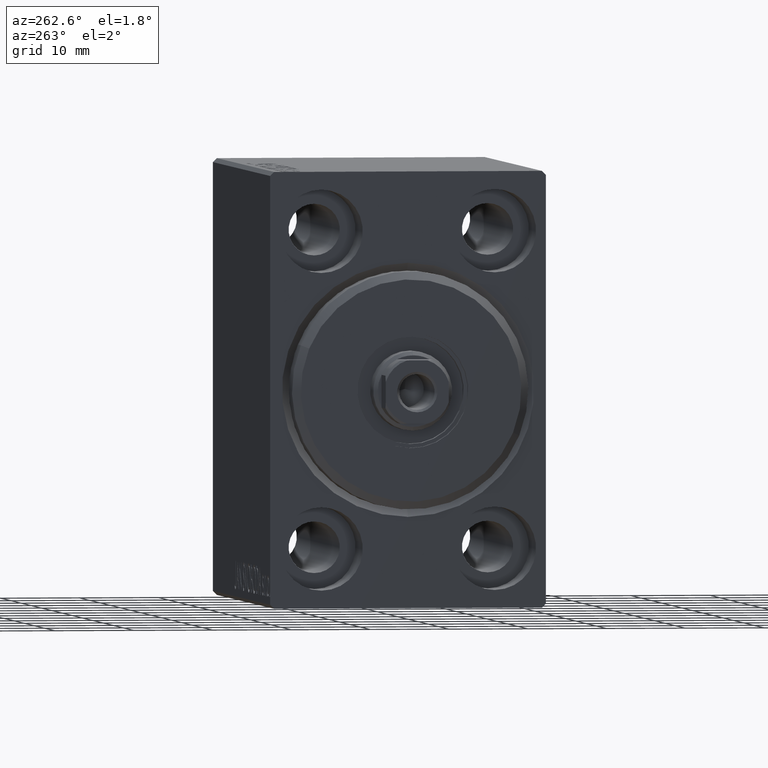
[diagram: clean part render]
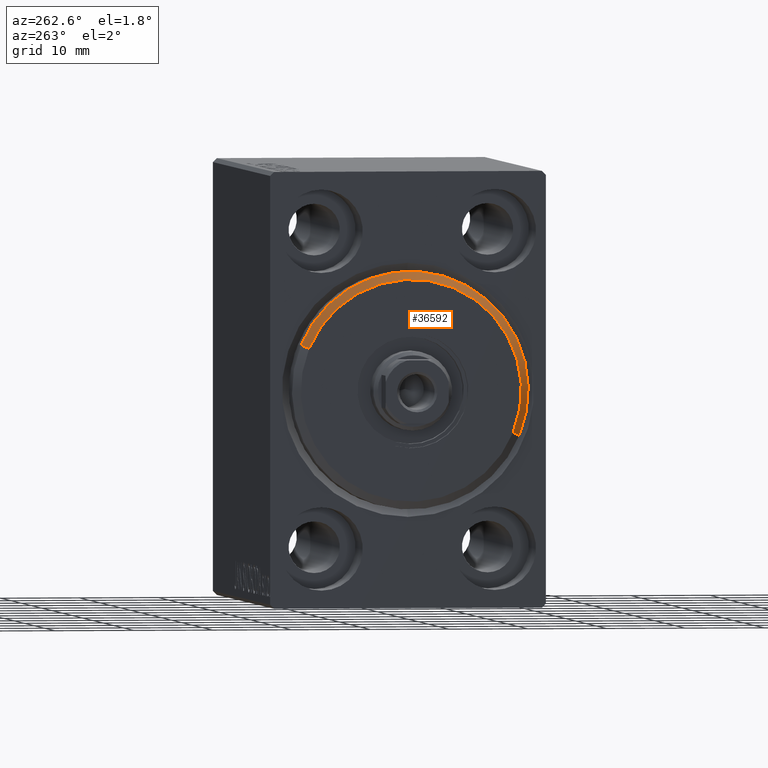
[diagram: same view with one face highlighted and labeled with its STEP entity id]
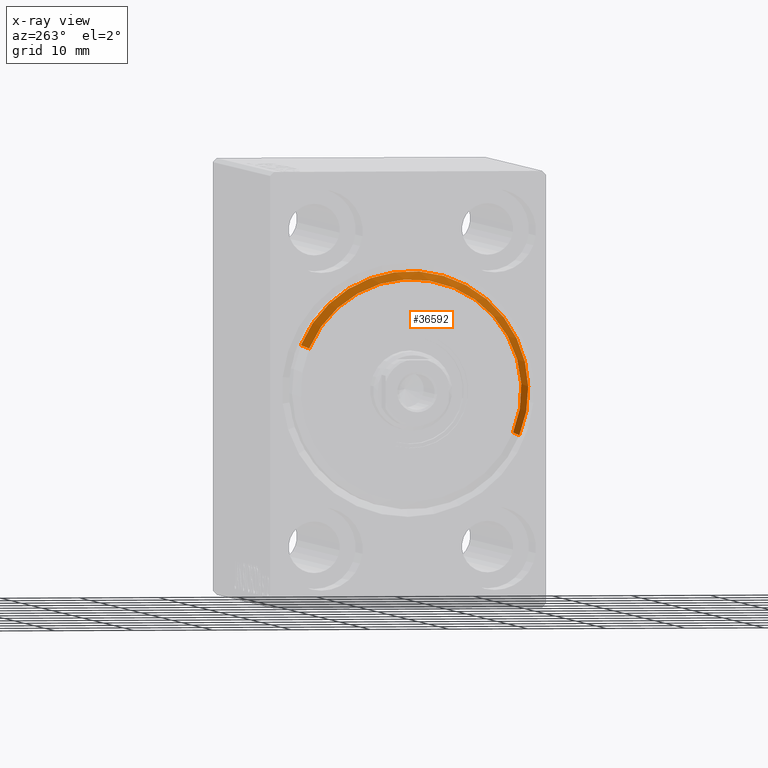
[diagram: x-ray of the same camera — body ghosted, the highlighted face saturated]
A machine part, auxiliary view. The second image highlights one B-rep face of the part: STEP entity #36592.
The next image is the same camera in x-ray: the body ghosted, the highlighted face saturated — about 0% of this face is hidden behind the body in this view.
In plain terms, the highlighted conical surface has half-angle 45 deg.
Its self-contained STEP definition (entity closure, byte-faithful):
#3253 = EDGE_CURVE ( 'NONE', #21091, #11929, #25946, .T. ) ;
#5534 = LINE ( 'NONE', #42601, #25812 ) ;
#8544 = DIRECTION ( 'NONE',  ( 0.000000000000000000, 0.000000000000000000, -1.000000000000000000 ) ) ;
#9483 = CIRCLE ( 'NONE', #34325, 15.00000000000000000 ) ;
#11238 = DIRECTION ( 'NONE',  ( 0.000000000000000000, 0.000000000000000000, -1.000000000000000000 ) ) ;
#11929 = VERTEX_POINT ( 'NONE', #15527 ) ;
#12126 = CARTESIAN_POINT ( 'NONE',  ( 3.000000000000000000, 0.000000000000000000, 0.000000000000000000 ) ) ;
#12169 = DIRECTION ( 'NONE',  ( -0.7071067811865482389, 8.659560562354926695E-17, -0.7071067811865469066 ) ) ;
#15379 = VECTOR ( 'NONE', #19719, 999.9999999999998863 ) ;
#15527 = CARTESIAN_POINT ( 'NONE',  ( 1.999999999999995781, 0.000000000000000000, 15.00000000000000000 ) ) ;
#16019 = ORIENTED_EDGE ( 'NONE', *, *, #31163, .F. ) ;
#16037 = ORIENTED_EDGE ( 'NONE', *, *, #3253, .T. ) ;
#17891 = CARTESIAN_POINT ( 'NONE',  ( 3.000000000000000000, 0.000000000000000000, 13.99999999999999645 ) ) ;
#19719 = DIRECTION ( 'NONE',  ( -0.7071067811865482389, 0.000000000000000000, 0.7071067811865469066 ) ) ;
#20394 = AXIS2_PLACEMENT_3D ( 'NONE', #32514, #22301, #8544 ) ;
#20965 = AXIS2_PLACEMENT_3D ( 'NONE', #12126, #31903, #25677 ) ;
#21091 = VERTEX_POINT ( 'NONE', #17891 ) ;
#22301 = DIRECTION ( 'NONE',  ( 1.000000000000000000, -0.000000000000000000, 0.000000000000000000 ) ) ;
#23760 = VERTEX_POINT ( 'NONE', #42245 ) ;
#25677 = DIRECTION ( 'NONE',  ( 0.000000000000000000, 0.000000000000000000, 1.000000000000000000 ) ) ;
#25812 = VECTOR ( 'NONE', #12169, 999.9999999999998863 ) ;
#25946 = LINE ( 'NONE', #42816, #15379 ) ;
#26852 = EDGE_LOOP ( 'NONE', ( #16019, #38869, #16037, #38215 ) ) ;
#27700 = EDGE_CURVE ( 'NONE', #35910, #11929, #9483, .T. ) ;
#29009 = FACE_OUTER_BOUND ( 'NONE', #26852, .T. ) ;
#31014 = CIRCLE ( 'NONE', #20394, 13.99999999999999645 ) ;
#31163 = EDGE_CURVE ( 'NONE', #23760, #35910, #5534, .T. ) ;
#31606 = CONICAL_SURFACE ( 'NONE', #20965, 13.99999999999999645, 0.7853981633974473908 ) ;
#31903 = DIRECTION ( 'NONE',  ( -1.000000000000000000, 0.000000000000000000, 0.000000000000000000 ) ) ;
#32514 = CARTESIAN_POINT ( 'NONE',  ( 3.000000000000000000, 0.000000000000000000, 0.000000000000000000 ) ) ;
#34325 = AXIS2_PLACEMENT_3D ( 'NONE', #41653, #38325, #11238 ) ;
#34525 = CARTESIAN_POINT ( 'NONE',  ( 1.999999999999995781, 1.836970198721029589E-15, -15.00000000000000000 ) ) ;
#35910 = VERTEX_POINT ( 'NONE', #34525 ) ;
#36592 = ADVANCED_FACE ( 'NONE', ( #29009 ), #31606, .T. ) ;
#38215 = ORIENTED_EDGE ( 'NONE', *, *, #27700, .F. ) ;
#38325 = DIRECTION ( 'NONE',  ( -1.000000000000000000, 0.000000000000000000, 0.000000000000000000 ) ) ;
#38869 = ORIENTED_EDGE ( 'NONE', *, *, #42041, .F. ) ;
#41653 = CARTESIAN_POINT ( 'NONE',  ( 1.999999999999995781, 0.000000000000000000, 0.000000000000000000 ) ) ;
#42041 = EDGE_CURVE ( 'NONE', #21091, #23760, #31014, .T. ) ;
#42245 = CARTESIAN_POINT ( 'NONE',  ( 3.000000000000000000, 1.775737858763662015E-15, -13.99999999999999645 ) ) ;
#42601 = CARTESIAN_POINT ( 'NONE',  ( 3.000000000000000000, 1.714505518806294244E-15, -13.99999999999999645 ) ) ;
#42816 = CARTESIAN_POINT ( 'NONE',  ( 3.000000000000000000, 0.000000000000000000, 13.99999999999999645 ) ) ;